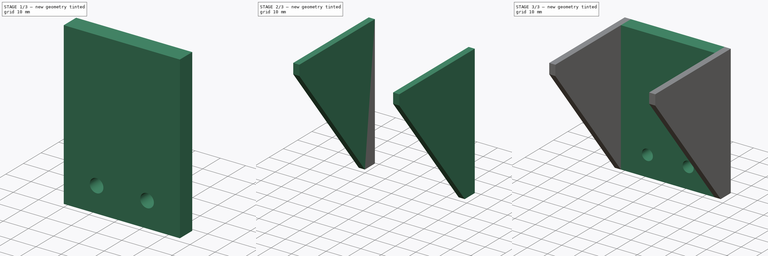
[diagram: build sequence overview — one tinted view per stage of 3, left to right]
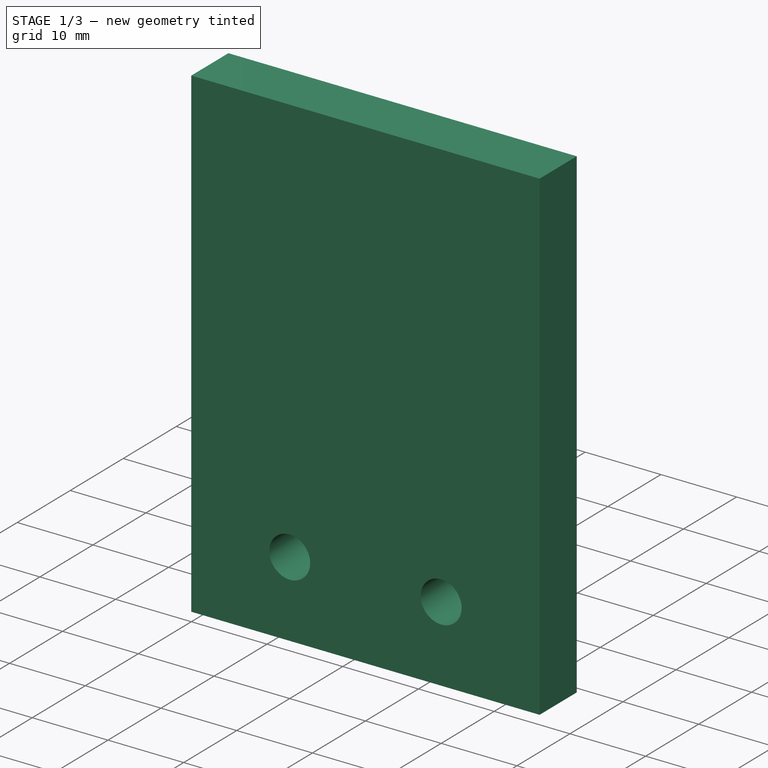
[diagram: stage 1 of 3 — iso view after this stage's code; geometry added in this stage tinted green]
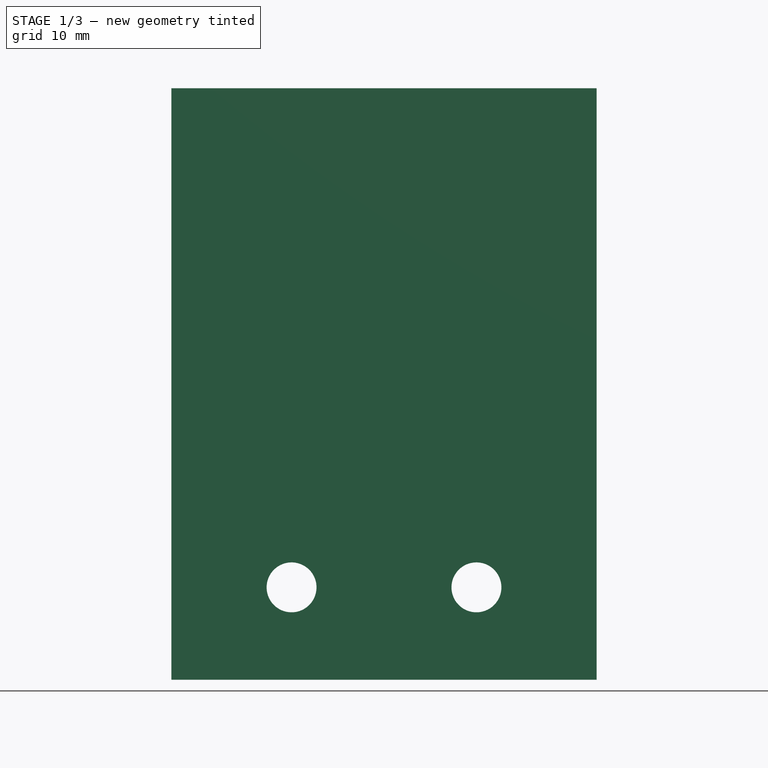
[diagram: stage 1 of 3 — front view after this stage's code; geometry added in this stage tinted green]
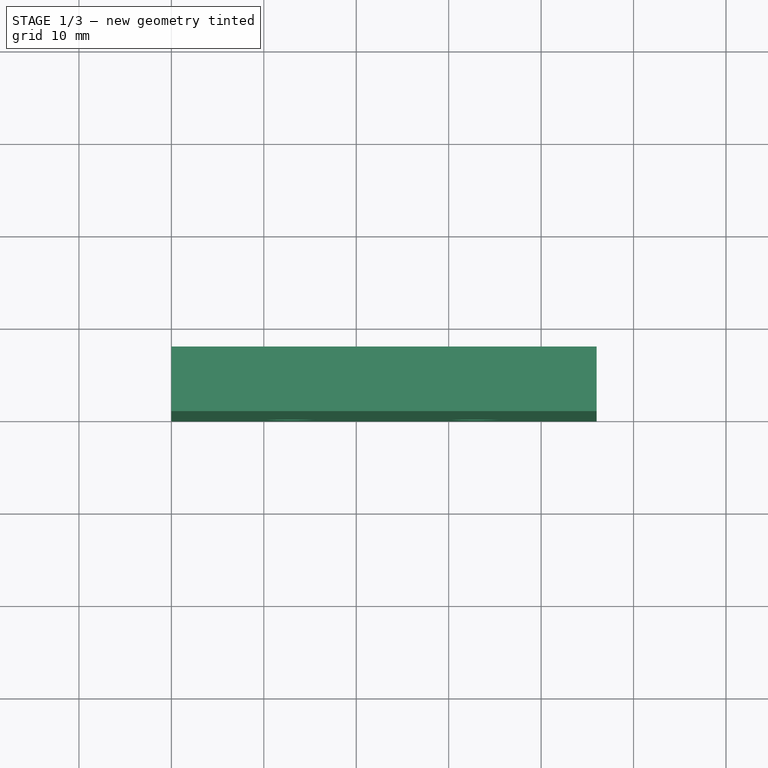
[diagram: stage 1 of 3 — top view after this stage's code; geometry added in this stage tinted green]
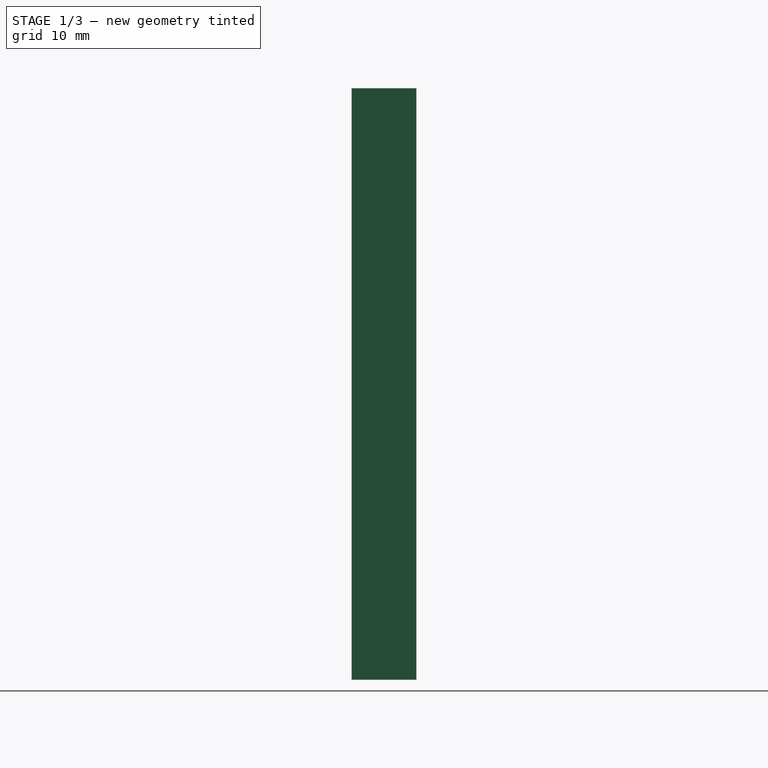
[diagram: stage 1 of 3 — right view after this stage's code; geometry added in this stage tinted green]
FCSTD DOCUMENT  (FreeCAD 0.15R4671 (Git))
Label: motor-mount
License: All rights reserved
LicenseURL: http://en.wikipedia.org/wiki/All_rights_reserved
objects: Part::Extrusion×6, Sketcher::SketchObject×3
note: 9 computed .brp shape members not serialized (recipe doc carries the construction recipe); baked Part::Feature solids carry a one-line shape summary decoded from their .brp

FEATURE [Sketcher::SketchObject] Sketch
  sketch-geometry (9):
    g0: LineSegment StartX=0 StartY=0 StartZ=0 EndX=46 EndY=0 EndZ=0
    g1: LineSegment StartX=46 StartY=0 StartZ=0 EndX=46 EndY=-46 EndZ=0
    g2: LineSegment StartX=46 StartY=-46 StartZ=0 EndX=0 EndY=-46 EndZ=0
    g3: LineSegment StartX=0 StartY=-46 StartZ=0 EndX=0 EndY=0 EndZ=0
    g4: Circle CenterX=7.5 CenterY=-7.5 CenterZ=0 NormalX=0 NormalY=0 NormalZ=1 Radius=2
    g5: Circle CenterX=7.5 CenterY=-38.5 CenterZ=0 NormalX=0 NormalY=0 NormalZ=1 Radius=2
    g6: Circle CenterX=38.5 CenterY=-7.5 CenterZ=0 NormalX=0 NormalY=0 NormalZ=1 Radius=2
    g7: Circle CenterX=38.5 CenterY=-38.5 CenterZ=0 NormalX=0 NormalY=0 NormalZ=1 Radius=2
    g8: Circle CenterX=23 CenterY=-23 CenterZ=0 NormalX=0 NormalY=0 NormalZ=1 Radius=12
  constraints (26):
    c: Coincident(g0,g1)
    c: Coincident(g1,g2)
    c: Coincident(g2,g3)
    c: Coincident(g3,g0)
    c: Horizontal(g0)
    c: Horizontal(g2)
    c: Vertical(g1)
    c: Vertical(g3)
    c: Coincident(g0,g-1)
    c: DistanceX(g0) = 46
    c: DistanceY(g3) = 46
    c: Radius(g4) = 2
    c: Radius(g6) = 2
    c: Equal(g6,g7)
    c: Equal(g6,g5)
    c: DistanceX(g4,g6) = 31
    c: DistanceX(g5,g7) = 31
    c: DistanceY(g5,g4) = 31
    c: DistanceY(g7,g6) = 31
    c: DistanceY(g4,g6) = 0
    c: DistanceX(g5,g4) = 0
    c: DistanceY(g-1,g4) = -7.5
    c: DistanceX(g-1,g4) = 7.5
    c: Radius(g8) = 12
    c: DistanceX(g-1,g8) = 23
    c: DistanceY(g-1,g8) = -23
FEATURE [Part::Extrusion] Extrude
  Base = -> Sketch
  Dir = (0,0,5)
  Solid = true
FEATURE [Sketcher::SketchObject] Sketch001
  ExternalGeometry = -> [Extrude]
  Placement = pos=(0,0,0) rot=(0,0.707107,0.707107;3.14159rad)
  Support = -> Extrude [Face1]
  sketch-geometry (6):
    g0: LineSegment StartX=-46 StartY=5 StartZ=0 EndX=0 EndY=5 EndZ=0
    g1: LineSegment StartX=0 StartY=5 StartZ=0 EndX=0 EndY=-59 EndZ=0
    g2: LineSegment StartX=0 StartY=-59 StartZ=0 EndX=-46 EndY=-59 EndZ=0
    g3: LineSegment StartX=-46 StartY=-59 StartZ=0 EndX=-46 EndY=5 EndZ=0
    g4: Circle CenterX=-33 CenterY=-49 CenterZ=0 NormalX=0 NormalY=0 NormalZ=1 Radius=2.7
    g5: Circle CenterX=-13 CenterY=-49 CenterZ=0 NormalX=0 NormalY=0 NormalZ=1 Radius=2.7
  constraints (17):
    c: Coincident(g0,g1)
    c: Coincident(g1,g2)
    c: Coincident(g2,g3)
    c: Coincident(g3,g0)
    c: Horizontal(g0)
    c: Horizontal(g2)
    c: Vertical(g1)
    c: Vertical(g3)
    c: Coincident(g0,g-3)
    c: PointOnObject(g1,g-2)
    c: DistanceY(g2,g0) = 64
    c: Radius(g4) = 2.7
    c: Equal(g4,g5)
    c: DistanceY(g4,g2) = -10
    c: DistanceY(g5,g2) = -10
    c: DistanceX(g4,g5) = 20
    c: DistanceX(g4,g2) = -13
FEATURE [Part::Extrusion] Extrude001
  Base = -> Sketch001
  Dir = (0,7,0)
  Solid = true
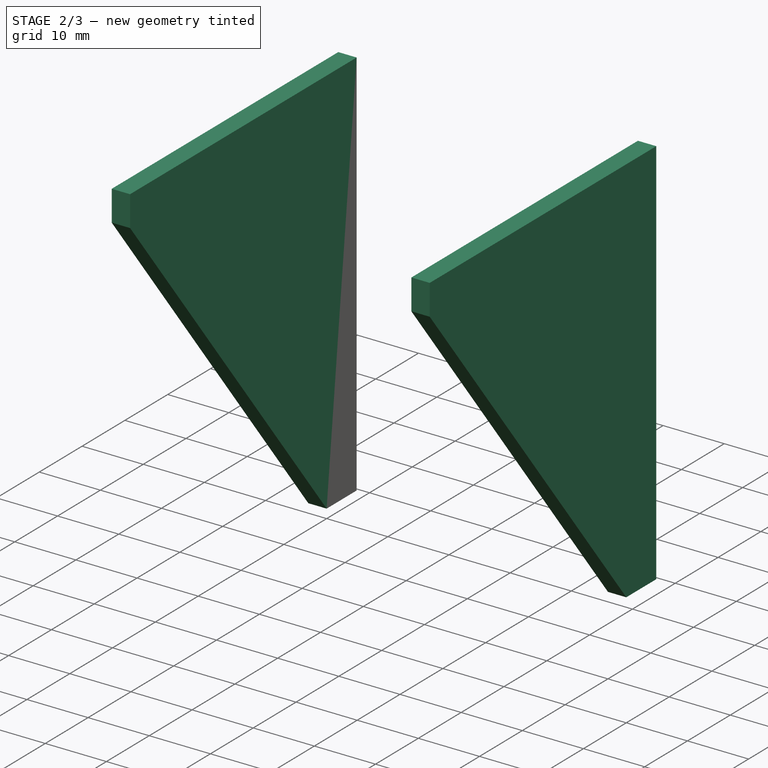
[diagram: stage 2 of 3 — iso view after this stage's code; geometry added in this stage tinted green]
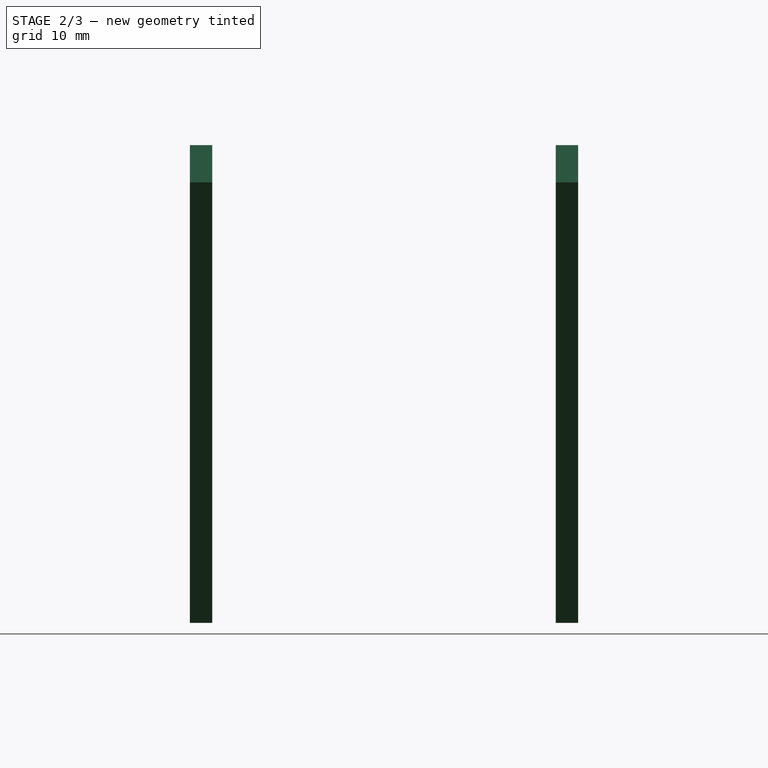
[diagram: stage 2 of 3 — front view after this stage's code; geometry added in this stage tinted green]
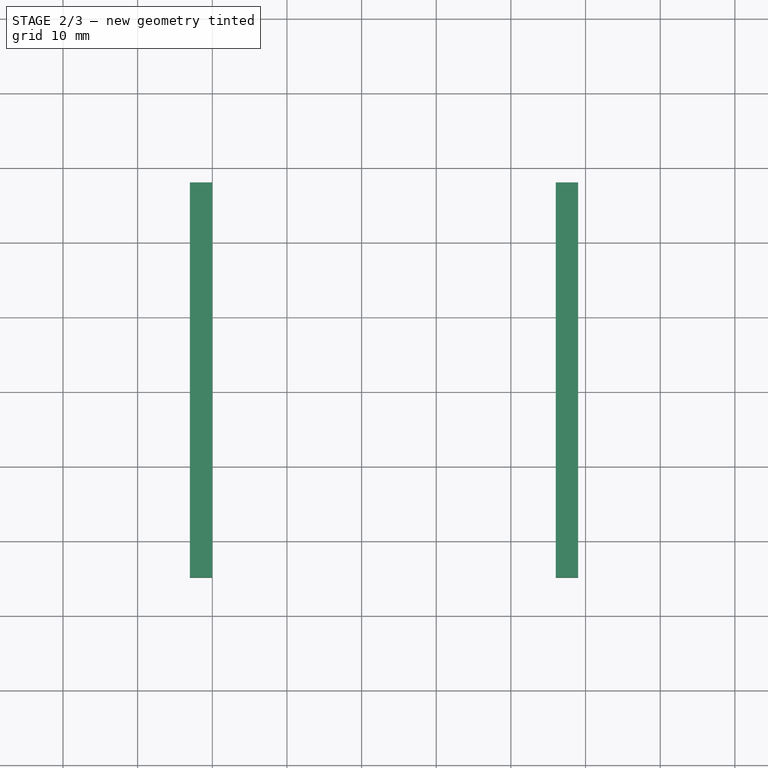
[diagram: stage 2 of 3 — top view after this stage's code; geometry added in this stage tinted green]
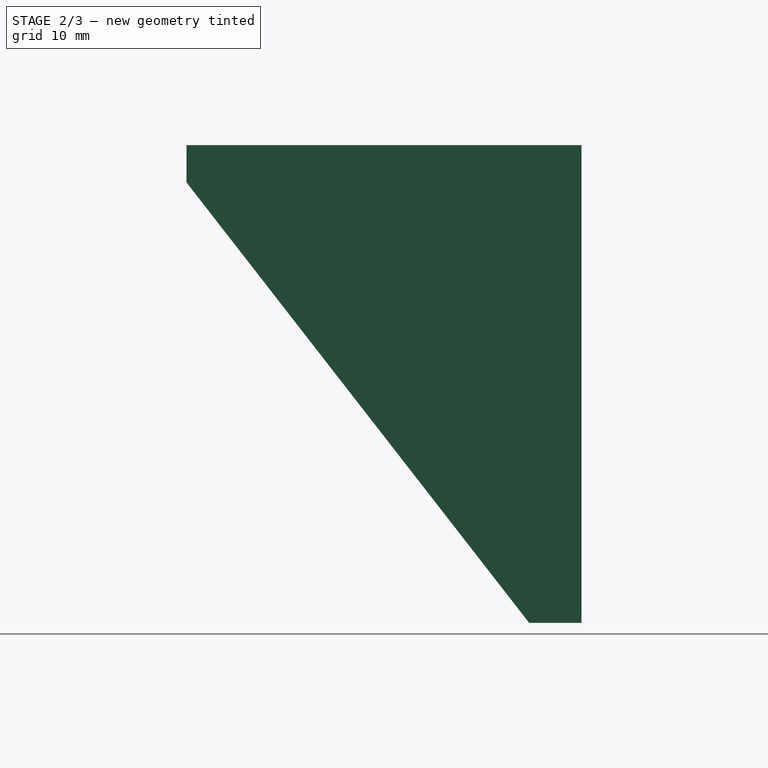
[diagram: stage 2 of 3 — right view after this stage's code; geometry added in this stage tinted green]
FEATURE [Part::Extrusion] Extrude004
  Base = -> Sketch002
  Dir = (3,0,0)
  Solid = true
FEATURE [Part::Extrusion] Extrude005
  Base = -> Sketch002
  Dir = (3,0,0)
  Placement = pos=(-49,0,0) rot=(0,0,1;0rad)
  Solid = true
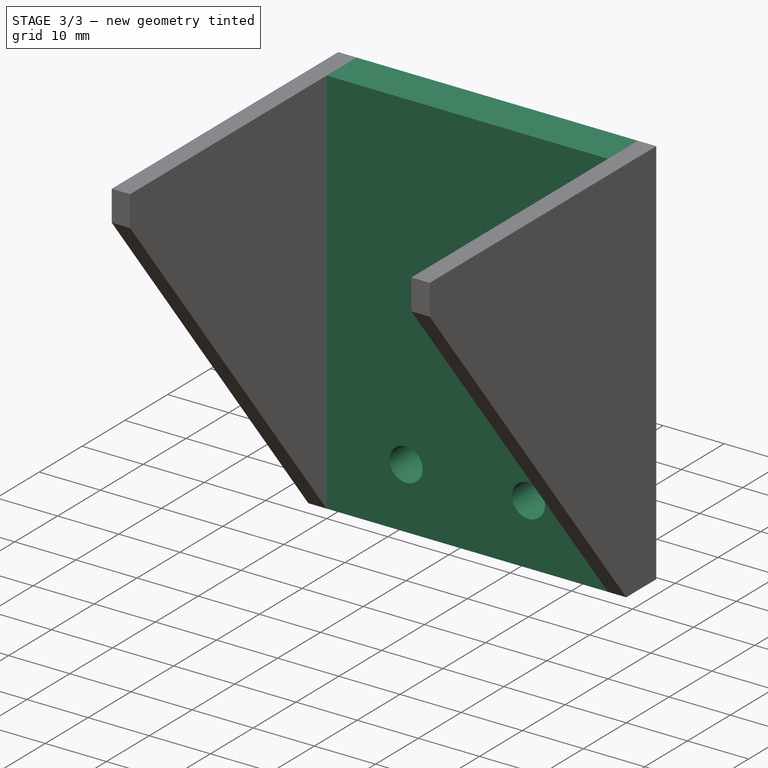
[diagram: stage 3 of 3 — iso view after this stage's code; geometry added in this stage tinted green]
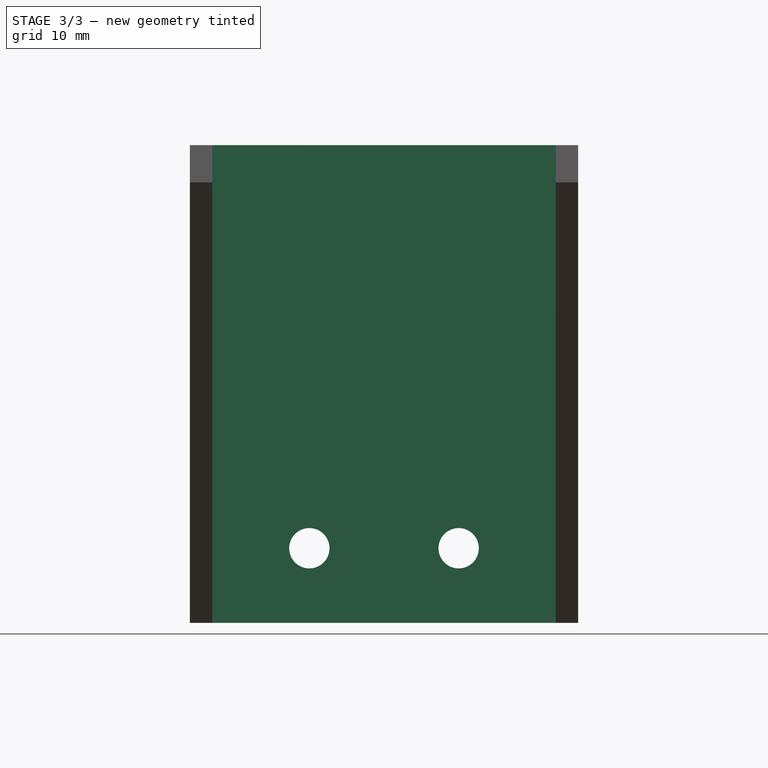
[diagram: stage 3 of 3 — front view after this stage's code; geometry added in this stage tinted green]
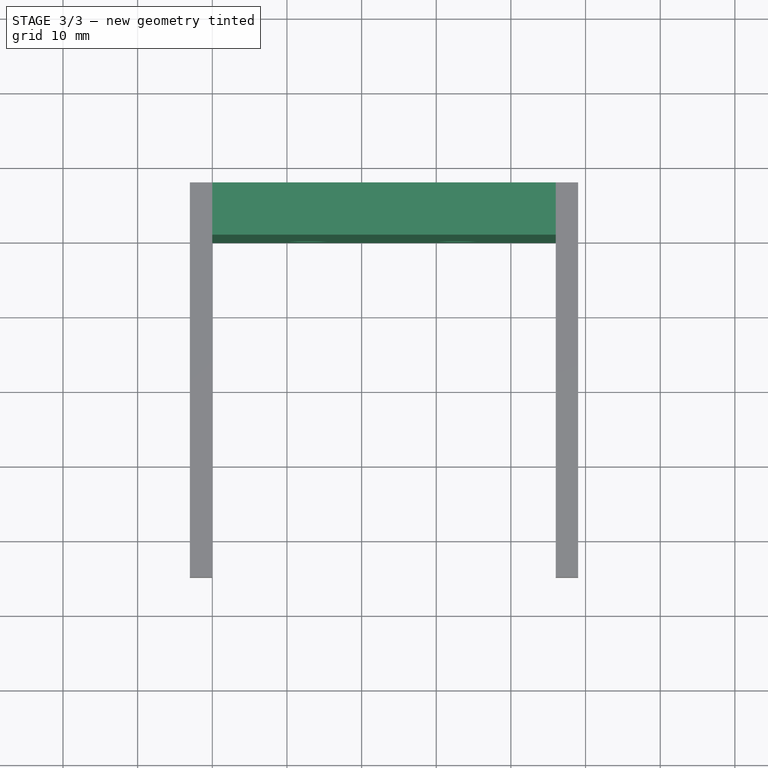
[diagram: stage 3 of 3 — top view after this stage's code; geometry added in this stage tinted green]
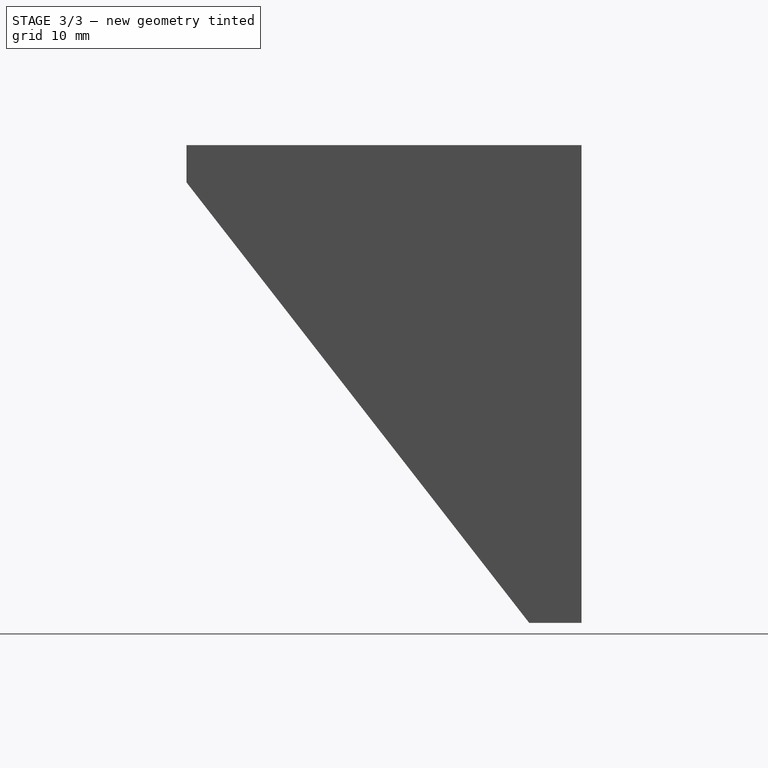
[diagram: stage 3 of 3 — right view after this stage's code; geometry added in this stage tinted green]
FEATURE [Part::Extrusion] Extrude002
  Base = -> Sketch001
  Dir = (0,7,0)
  Solid = true
FEATURE [Sketcher::SketchObject] Sketch002
  ExternalGeometry = -> [Extrude001]
  Placement = pos=(46,0,0) rot=(0.57735,0.57735,0.57735;2.0944rad)
  Support = -> Extrude001 [Face4]
  sketch-geometry (5):
    g0: LineSegment StartX=7 StartY=5.00094 StartZ=0 EndX=7 EndY=-59 EndZ=0
    g1: LineSegment StartX=7 StartY=-59 StartZ=0 EndX=0 EndY=-59 EndZ=0
    g2: LineSegment StartX=0 StartY=-59 StartZ=0 EndX=-45.9053 EndY=0 EndZ=0
    g3: LineSegment StartX=-45.9053 StartY=0 StartZ=0 EndX=-45.9053 EndY=5.00094 EndZ=0
    g4: LineSegment StartX=-45.9053 StartY=5.00094 StartZ=0 EndX=7 EndY=5.00094 EndZ=0
  constraints (11):
    c: Coincident(g0,g-4)
    c: Vertical(g0)
    c: Coincident(g0,g1)
    c: Coincident(g1,g-5)
    c: Coincident(g1,g2)
    c: Coincident(g2,g3)
    c: Coincident(g3,g4)
    c: Coincident(g4,g0)
    c: Horizontal(g4)
    c: Vertical(g3)
    c: DistanceY(g-1,g2) = 0
FEATURE [Part::Extrusion] Extrude003
  Base = -> Sketch002
  Dir = (3,0,0)
  Solid = true
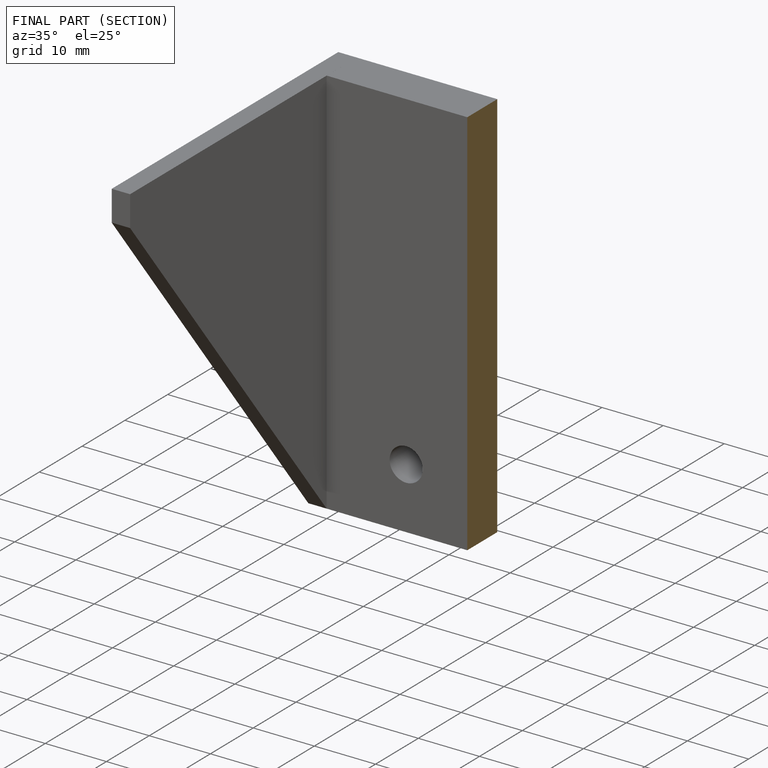
[diagram: finished part — half-section view (interior)]
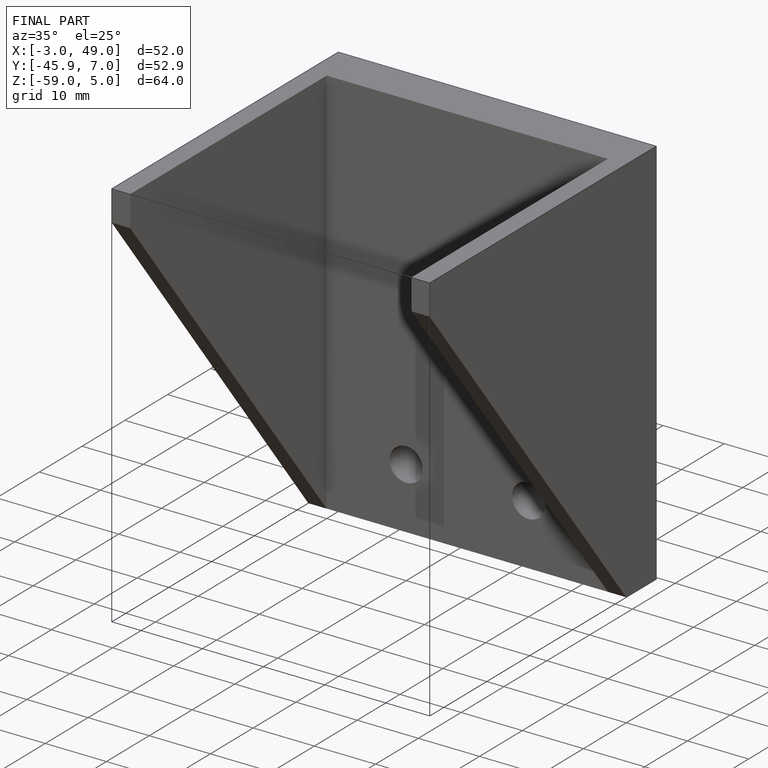
[diagram: finished part — iso view with bounding-box wireframe]
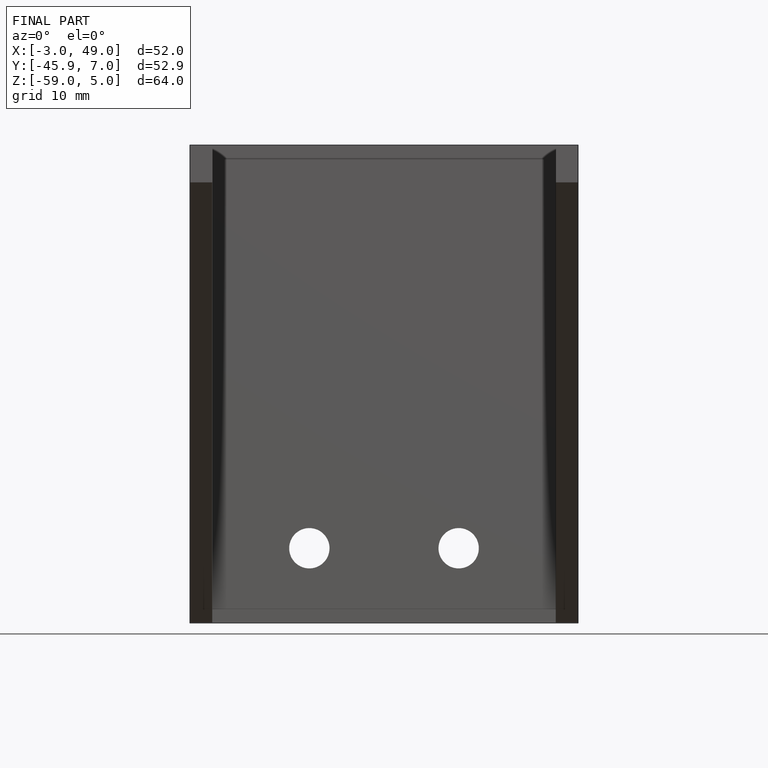
[diagram: finished part — front view with bounding-box wireframe]
